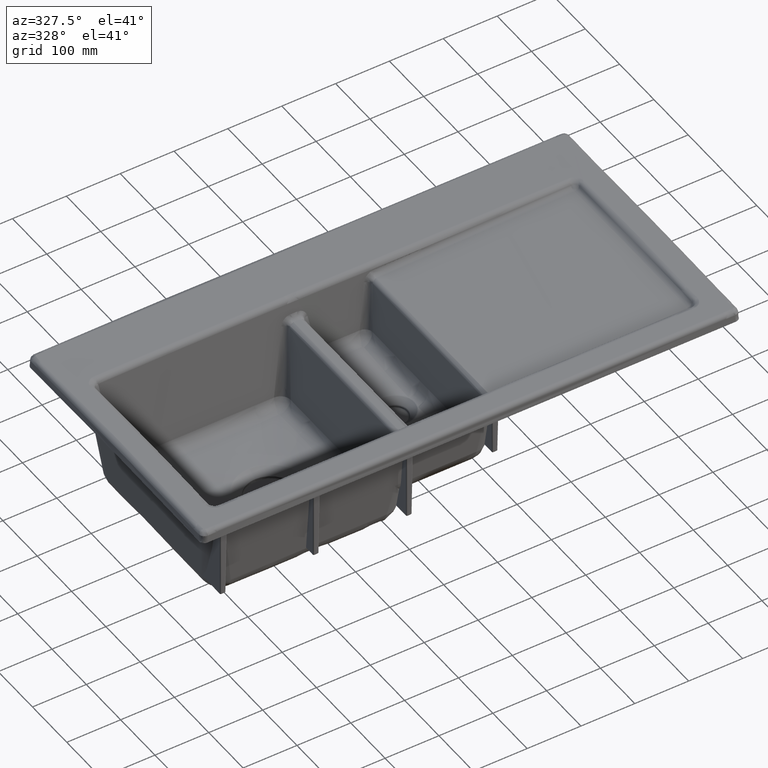
[diagram: clean part render]
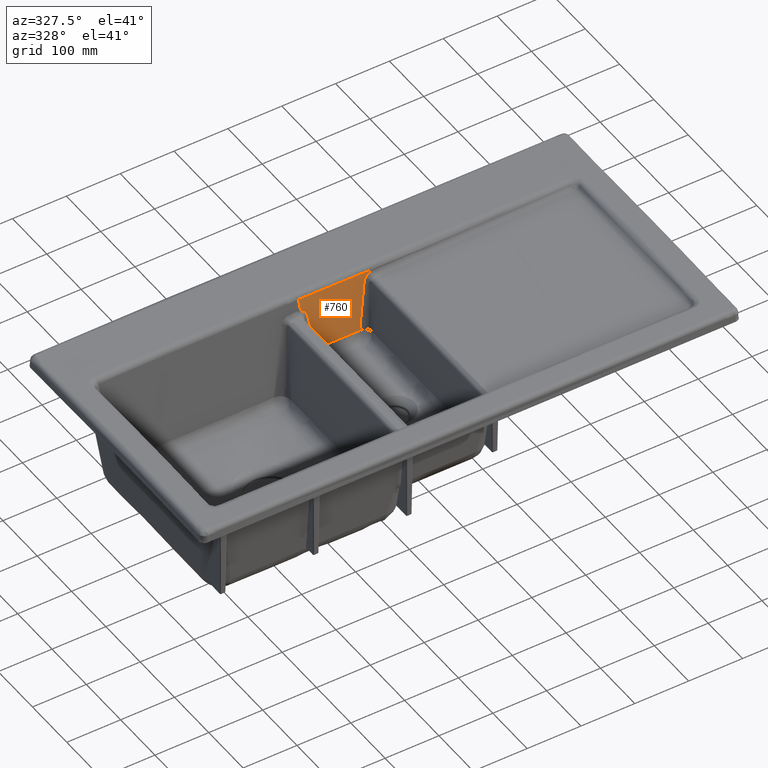
[diagram: same view with one face highlighted and labeled with its STEP entity id]
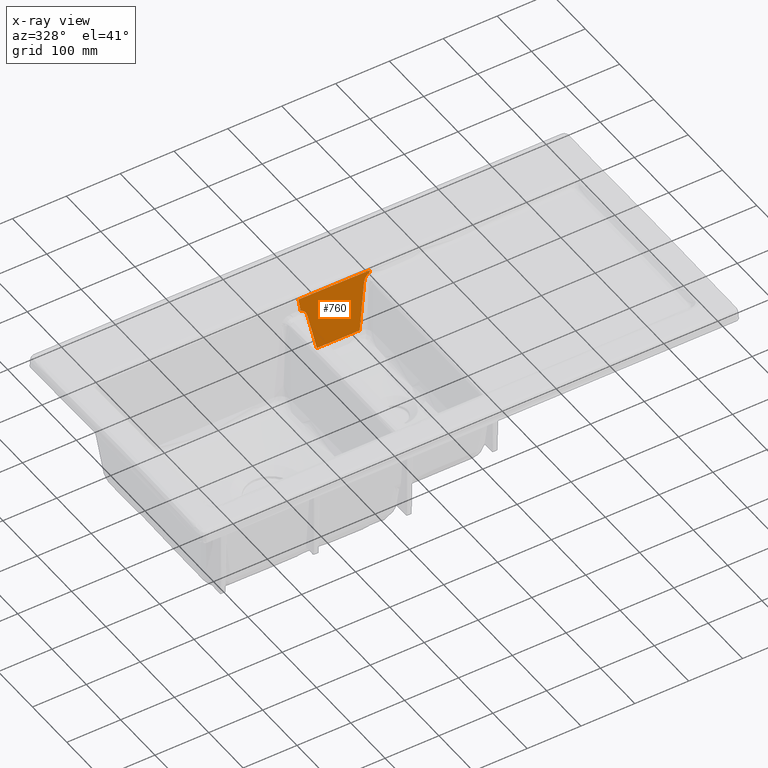
[diagram: x-ray of the same camera — body ghosted, the highlighted face saturated]
A machine part, auxiliary view. The second image highlights one B-rep face of the part: STEP entity #760.
The next image is the same camera in x-ray: the body ghosted, the highlighted face saturated — about 0% of this face is hidden behind the body in this view.
In plain terms, the highlighted face is a freeform B-spline surface patch.
Its self-contained STEP definition (entity closure, byte-faithful):
#225=(
BOUNDED_CURVE()
B_SPLINE_CURVE(3,(#32425,#32426,#32427,#32428,#32429,#32430,#32431,#32432),
 .UNSPECIFIED.,.F.,.F.)
B_SPLINE_CURVE_WITH_KNOTS((4,2,2,4),(0.,0.164042192464947,0.435112193951464,
1.),.UNSPECIFIED.)
CURVE()
GEOMETRIC_REPRESENTATION_ITEM()
RATIONAL_B_SPLINE_CURVE((1.,1.,1.,1.,1.,1.,1.,1.))
REPRESENTATION_ITEM('')
);
#760=ADVANCED_FACE('',(#1252),#930,.F.);
#930=B_SPLINE_SURFACE_WITH_KNOTS('',3,1,((#32447,#32448),(#32449,#32450),
(#32451,#32452),(#32453,#32454),(#32455,#32456),(#32457,#32458),(#32459,
#32460)),.UNSPECIFIED.,.F.,.F.,.F.,(4,1,1,1,4),(2,2),(0.,0.135684715560944,
0.524013379890054,0.912342044219164,1.),(0.,1.),.UNSPECIFIED.);
#1252=FACE_OUTER_BOUND('',#1611,.T.);
#1611=EDGE_LOOP('',(#3172,#3173,#3174,#3175,#3176,#3177,#3178,#3179));
#3172=ORIENTED_EDGE('',*,*,#4619,.T.);
#3173=ORIENTED_EDGE('',*,*,#4570,.T.);
#3174=ORIENTED_EDGE('',*,*,#4572,.T.);
#3175=ORIENTED_EDGE('',*,*,#4573,.T.);
#3176=ORIENTED_EDGE('',*,*,#4576,.T.);
#3177=ORIENTED_EDGE('',*,*,#4621,.F.);
#3178=ORIENTED_EDGE('',*,*,#4622,.F.);
#3179=ORIENTED_EDGE('',*,*,#4623,.F.);
#3755=VERTEX_POINT('',#29990);
#3781=VERTEX_POINT('',#31169);
#3783=VERTEX_POINT('',#31195);
#3784=VERTEX_POINT('',#31218);
#3786=VERTEX_POINT('',#31342);
#3807=VERTEX_POINT('',#32399);
#3808=VERTEX_POINT('',#32433);
#3809=VERTEX_POINT('',#32442);
#4570=EDGE_CURVE('',#3781,#3783,#5255,.T.);
#4572=EDGE_CURVE('',#3783,#3784,#5257,.T.);
#4573=EDGE_CURVE('',#3784,#3755,#5258,.T.);
#4576=EDGE_CURVE('',#3755,#3786,#5261,.T.);
#4619=EDGE_CURVE('',#3807,#3781,#5294,.T.);
#4621=EDGE_CURVE('',#3808,#3786,#225,.T.);
#4622=EDGE_CURVE('',#3809,#3808,#5296,.T.);
#4623=EDGE_CURVE('',#3807,#3809,#5297,.T.);
#5255=B_SPLINE_CURVE_WITH_KNOTS('',3,(#31196,#31197,#31198,#31199),
 .UNSPECIFIED.,.F.,.F.,(4,4),(0.,1.),.UNSPECIFIED.);
#5257=B_SPLINE_CURVE_WITH_KNOTS('',3,(#31219,#31220,#31221,#31222,#31223,
#31224,#31225,#31226,#31227,#31228),.UNSPECIFIED.,.F.,.F.,(4,2,2,2,4),(0.,
0.25,0.5,0.75,1.),.UNSPECIFIED.);
#5258=B_SPLINE_CURVE_WITH_KNOTS('',3,(#31306,#31307,#31308,#31309),
 .UNSPECIFIED.,.F.,.F.,(4,4),(0.,1.),.UNSPECIFIED.);
#5261=B_SPLINE_CURVE_WITH_KNOTS('',3,(#31343,#31344,#31345,#31346),
 .UNSPECIFIED.,.F.,.F.,(4,4),(0.,1.),.UNSPECIFIED.);
#5294=B_SPLINE_CURVE_WITH_KNOTS('',3,(#32393,#32394,#32395,#32396,#32397,
#32398),.UNSPECIFIED.,.F.,.F.,(4,2,4),(0.,0.5,1.),.UNSPECIFIED.);
#5296=B_SPLINE_CURVE_WITH_KNOTS('',3,(#32434,#32435,#32436,#32437,#32438,
#32439,#32440,#32441),.UNSPECIFIED.,.F.,.F.,(4,1,1,1,1,4),(0.,0.00711559403008576,
0.338077062686724,0.503557797015043,0.669038531343362,1.),.UNSPECIFIED.);
#5297=B_SPLINE_CURVE_WITH_KNOTS('',3,(#32443,#32444,#32445,#32446),
 .UNSPECIFIED.,.F.,.F.,(4,4),(0.,1.),.UNSPECIFIED.);
#29990=CARTESIAN_POINT('',(-39.5239520259145,165.071279036452,-114.578781243243));
#31169=CARTESIAN_POINT('',(-65.944875884464,176.86357689629,-9.8695474096623));
#31195=CARTESIAN_POINT('',(-63.5814502238487,174.336279207224,-32.3415683562401));
#31196=CARTESIAN_POINT('',(-65.9448758848773,176.863576896292,-9.86954740966437));
#31197=CARTESIAN_POINT('',(-65.1570412222461,176.020711839305,-17.3597744009962));
#31198=CARTESIAN_POINT('',(-64.3692298879362,175.178267986042,-24.8504989927984));
#31199=CARTESIAN_POINT('',(-63.5814417921319,174.336262095395,-32.3417207551671));
#31218=CARTESIAN_POINT('',(-51.9547241212973,172.623800307826,-47.1633204999402));
#31219=CARTESIAN_POINT('',(-63.5814225995826,174.336267249504,-32.3416738558235));
#31220=CARTESIAN_POINT('',(-62.0451324132003,174.259397609335,-32.9619198397941));
#31221=CARTESIAN_POINT('',(-60.6626443025046,174.163047812757,-33.7623614709483));
#31222=CARTESIAN_POINT('',(-58.0485774155645,173.923882579648,-35.7859912410945));
#31223=CARTESIAN_POINT('',(-56.8842000998835,173.786813118851,-36.960768463248));
#31224=CARTESIAN_POINT('',(-54.8957153791497,173.488630601097,-39.5421307921501));
#31225=CARTESIAN_POINT('',(-54.0447032299234,173.322296280566,-40.9942940183535));
#31226=CARTESIAN_POINT('',(-52.7309397859515,172.982886054404,-43.9777976841396));
#31227=CARTESIAN_POINT('',(-52.2532416803612,172.806633115319,-45.5369102689407));
#31228=CARTESIAN_POINT('',(-51.9547241246272,172.623799627903,-47.1633204241175));
#31306=CARTESIAN_POINT('',(-51.9547241246272,172.623799627903,-47.1633204241175));
#31307=CARTESIAN_POINT('',(-47.5410645464373,169.919702956909,-71.2178936400205));
#31308=CARTESIAN_POINT('',(-43.3974868361089,167.402850080085,-93.6903690933803));
#31309=CARTESIAN_POINT('',(-39.5238351600228,165.071418421361,-114.577522546639));
#31342=CARTESIAN_POINT('',(39.8755610299016,164.775847585387,-114.526535588336));
#31343=CARTESIAN_POINT('',(-39.5239699617139,165.071138657927,-114.580044727912));
#31344=CARTESIAN_POINT('',(-13.0579897492942,164.995717717375,-114.561781061889));
#31345=CARTESIAN_POINT('',(13.4077156484055,164.875586013862,-114.544076417177));
#31346=CARTESIAN_POINT('',(39.8734981206599,164.775919856929,-114.526317694777));
#32393=CARTESIAN_POINT('',(65.7308700091326,175.812691071215,-9.92460670012199));
#32394=CARTESIAN_POINT('',(43.7846360570626,175.918777356722,-9.91491248225745));
#32395=CARTESIAN_POINT('',(21.8392616522716,176.181650936072,-9.90432466450308));
#32396=CARTESIAN_POINT('',(-22.0523569976594,176.587242644571,-9.88544791975891));
#32397=CARTESIAN_POINT('',(-43.998514290591,176.743668146897,-9.87703270649844));
#32398=CARTESIAN_POINT('',(-65.9448758848776,176.863576896292,-9.86954740966154));
#32399=CARTESIAN_POINT('',(65.7308296156943,175.812802684654,-9.92451128033201));
#32425=CARTESIAN_POINT('',(53.8427273866251,173.902756087545,-28.496360666306));
#32426=CARTESIAN_POINT('',(53.0501423210531,173.375383073996,-33.4881887399398));
#32427=CARTESIAN_POINT('',(52.2599330995652,172.850290352909,-38.4555718556228));
#32428=CARTESIAN_POINT('',(50.1814573228731,171.474783859922,-51.4596640521563));
#32429=CARTESIAN_POINT('',(48.8999744326586,170.630976051058,-59.4284668300244));
#32430=CARTESIAN_POINT('',(44.9891584464448,168.068933052866,-83.5946324383026));
#32431=CARTESIAN_POINT('',(42.4043464807269,166.394089562993,-99.3486973565076));
#32432=CARTESIAN_POINT('',(39.877623294819,164.775736387768,-114.526749252394));
#32433=CARTESIAN_POINT('',(53.8427876405962,173.902797688863,-28.4959815945991));
#32434=CARTESIAN_POINT('',(65.3448761685526,175.416138351651,-13.673356851249));
#32435=CARTESIAN_POINT('',(65.3017020874318,175.414476561833,-13.6909294014801));
#32436=CARTESIAN_POINT('',(63.2538184644883,175.33466226174,-14.5339926868895));
#32437=CARTESIAN_POINT('',(60.4497229093607,175.155172218122,-16.3646323066109));
#32438=CARTESIAN_POINT('',(57.5345458990845,174.829692815631,-19.5842599785234));
#32439=CARTESIAN_POINT('',(55.2129147102626,174.453433218504,-23.249793167601));
#32440=CARTESIAN_POINT('',(54.1812251689613,174.12794534424,-26.364837092922));
#32441=CARTESIAN_POINT('',(53.8427273804335,173.902756083425,-28.496360705301));
#32442=CARTESIAN_POINT('',(65.3404515626263,175.416028370762,-13.6745935880869));
#32443=CARTESIAN_POINT('',(65.7307280912526,175.812713563244,-9.92446031822412));
#32444=CARTESIAN_POINT('',(65.5993041540295,175.680536744439,-11.1740809801695));
#32445=CARTESIAN_POINT('',(65.4678802168064,175.548359925634,-12.4237016421149));
#32446=CARTESIAN_POINT('',(65.3364562795832,175.416183106829,-13.6733223040603));
#32447=CARTESIAN_POINT('',(-73.7658383905294,178.753442542372,6.61220091809456));
#32448=CARTESIAN_POINT('',(-73.7230708725202,165.099904172948,-115.095100636039));
#32449=CARTESIAN_POINT('',(-66.9960938950159,178.71653435451,6.61477698173638));
#32450=CARTESIAN_POINT('',(-66.9544131514383,165.08310379904,-115.115753124276));
#32451=CARTESIAN_POINT('',(-40.8514635876959,178.55995723365,6.62436224874612));
#32452=CARTESIAN_POINT('',(-40.8139351486933,165.012746026368,-115.195654638103));
#32453=CARTESIAN_POINT('',(4.66744726957516,178.183761213712,6.63852485865117));
#32454=CARTESIAN_POINT('',(4.69812708171607,164.849850058557,-115.335753610637));
#32455=CARTESIAN_POINT('',(47.7888371600168,177.649407394769,6.64808482431872));
#32456=CARTESIAN_POINT('',(47.8138535115564,164.626123706873,-115.469981892224));
#32457=CARTESIAN_POINT('',(71.5372383453145,177.546004744718,6.65442507369123));
#32458=CARTESIAN_POINT('',(71.5584995372086,164.577355790178,-115.543483236525));
#32459=CARTESIAN_POINT('',(75.9107832326248,177.53193217067,6.65559761657756));
#32460=CARTESIAN_POINT('',(75.9313367916782,164.570313024039,-115.557017365748));